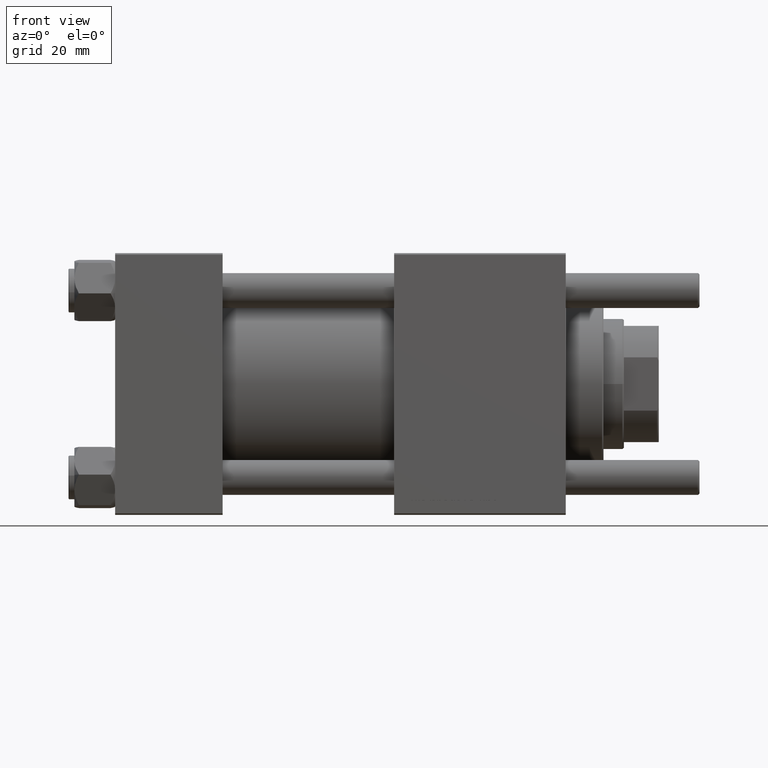
[diagram: clean part render]
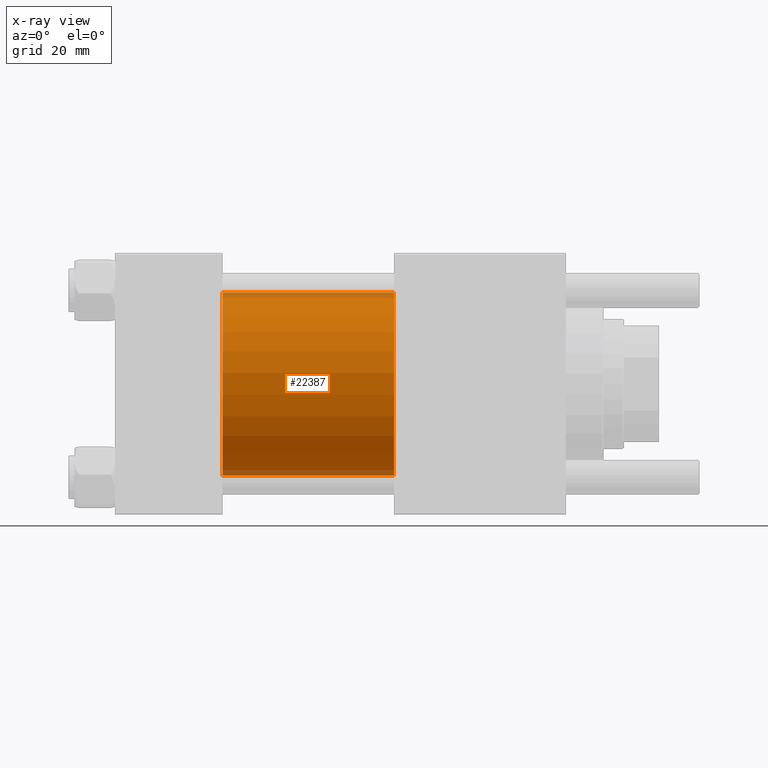
[diagram: x-ray — body ghosted, one internal face saturated and labeled with its STEP entity id]
A machine part, front view, then the same camera in x-ray: the body is ghosted and one INTERNAL B-rep face — a face not visible from any outside direction — is saturated and labeled: STEP entity #22387.
In plain terms, the highlighted cylindrical surface (partial cylindrical patch) has radius 31.5 mm, axis along (-1, -0, -0).
Its self-contained STEP definition (entity closure, byte-faithful):
#298 = CIRCLE ( 'NONE', #42376, 31.50000000000000000 ) ;
#2294 = VERTEX_POINT ( 'NONE', #46017 ) ;
#5545 = EDGE_CURVE ( 'NONE', #23569, #2294, #298, .T. ) ;
#6094 = AXIS2_PLACEMENT_3D ( 'NONE', #40223, #49104, #40499 ) ;
#7525 = DIRECTION ( 'NONE',  ( 0.000000000000000000, 0.000000000000000000, -1.000000000000000000 ) ) ;
#11116 = DIRECTION ( 'NONE',  ( -1.000000000000000000, -0.000000000000000000, -0.000000000000000000 ) ) ;
#12385 = DIRECTION ( 'NONE',  ( 1.000000000000000000, 0.000000000000000000, 0.000000000000000000 ) ) ;
#16684 = CARTESIAN_POINT ( 'NONE',  ( 96.00000000000000000, -2.602085213965210642E-15, 0.000000000000000000 ) ) ;
#20544 = ORIENTED_EDGE ( 'NONE', *, *, #52137, .T. ) ;
#22387 = ADVANCED_FACE ( 'NONE', ( #35357 ), #31063, .F. ) ;
#23569 = VERTEX_POINT ( 'NONE', #24810 ) ;
#24810 = CARTESIAN_POINT ( 'NONE',  ( 96.00000000000000000, -2.602085213965210642E-15, 31.50000000000000000 ) ) ;
#25860 = EDGE_CURVE ( 'NONE', #43674, #54677, #34598, .T. ) ;
#26345 = EDGE_LOOP ( 'NONE', ( #33060, #20544, #40209, #36546 ) ) ;
#27653 = LINE ( 'NONE', #48589, #46173 ) ;
#29644 = CARTESIAN_POINT ( 'NONE',  ( 37.00000000000000000, -2.602085213965210642E-15, 31.50000000000000000 ) ) ;
#31063 = CYLINDRICAL_SURFACE ( 'NONE', #6094, 31.50000000000000000 ) ;
#31281 = DIRECTION ( 'NONE',  ( 0.000000000000000000, 0.000000000000000000, -1.000000000000000000 ) ) ;
#31665 = CARTESIAN_POINT ( 'NONE',  ( 37.00000000000000000, 1.255552203348951850E-15, -31.50000000000000000 ) ) ;
#33060 = ORIENTED_EDGE ( 'NONE', *, *, #5545, .T. ) ;
#34598 = CIRCLE ( 'NONE', #51989, 31.50000000000000000 ) ;
#35357 = FACE_OUTER_BOUND ( 'NONE', #26345, .T. ) ;
#36546 = ORIENTED_EDGE ( 'NONE', *, *, #52444, .F. ) ;
#40209 = ORIENTED_EDGE ( 'NONE', *, *, #25860, .F. ) ;
#40223 = CARTESIAN_POINT ( 'NONE',  ( 96.00000000000000000, -2.602085213965210642E-15, 0.000000000000000000 ) ) ;
#40499 = DIRECTION ( 'NONE',  ( 0.000000000000000000, 0.000000000000000000, 1.000000000000000000 ) ) ;
#42376 = AXIS2_PLACEMENT_3D ( 'NONE', #16684, #12385, #31281 ) ;
#43674 = VERTEX_POINT ( 'NONE', #29644 ) ;
#45128 = DIRECTION ( 'NONE',  ( -1.000000000000000000, -0.000000000000000000, -0.000000000000000000 ) ) ;
#46017 = CARTESIAN_POINT ( 'NONE',  ( 96.00000000000000000, 1.255552203348951850E-15, -31.50000000000000000 ) ) ;
#46173 = VECTOR ( 'NONE', #45128, 1000.000000000000000 ) ;
#46787 = CARTESIAN_POINT ( 'NONE',  ( 37.00000000000000000, -2.602085213965210642E-15, 0.000000000000000000 ) ) ;
#48026 = VECTOR ( 'NONE', #11116, 1000.000000000000000 ) ;
#48589 = CARTESIAN_POINT ( 'NONE',  ( 96.00000000000000000, 1.255552203348951850E-15, -31.50000000000000000 ) ) ;
#49104 = DIRECTION ( 'NONE',  ( -1.000000000000000000, -0.000000000000000000, -0.000000000000000000 ) ) ;
#50806 = DIRECTION ( 'NONE',  ( 1.000000000000000000, 0.000000000000000000, 0.000000000000000000 ) ) ;
#51989 = AXIS2_PLACEMENT_3D ( 'NONE', #46787, #50806, #7525 ) ;
#52137 = EDGE_CURVE ( 'NONE', #2294, #54677, #27653, .T. ) ;
#52444 = EDGE_CURVE ( 'NONE', #23569, #43674, #54689, .T. ) ;
#54406 = CARTESIAN_POINT ( 'NONE',  ( 96.00000000000000000, -2.602085213965210642E-15, 31.50000000000000000 ) ) ;
#54677 = VERTEX_POINT ( 'NONE', #31665 ) ;
#54689 = LINE ( 'NONE', #54406, #48026 ) ;